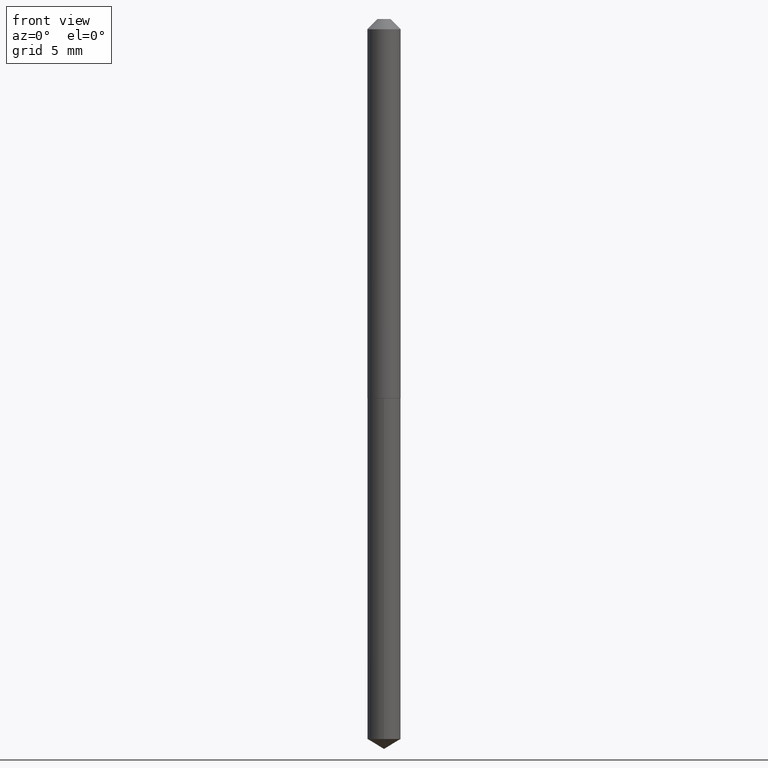
[diagram: clean part render]
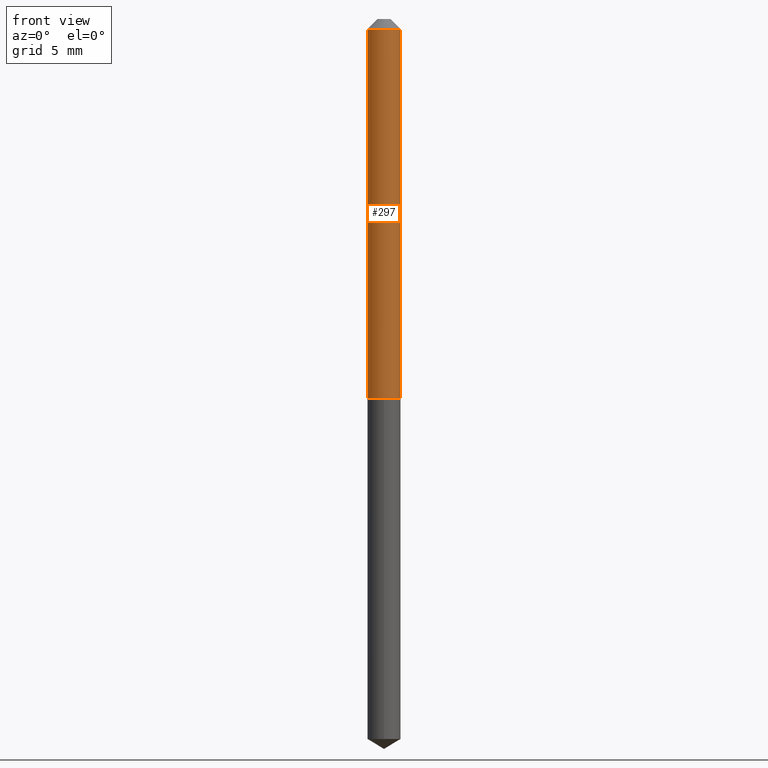
[diagram: same view with one face highlighted and labeled with its STEP entity id]
A machine part, front view. The second image highlights one B-rep face of the part: STEP entity #297.
In plain terms, the highlighted cylindrical surface (edge-blend (fillet) strip) has radius 1.3005 mm, axis along (-0, 0, 1).
Its self-contained STEP definition (entity closure, byte-faithful):
#11 = CIRCLE ( 'NONE', #224, 0.05120000000000001633 ) ;
#13 = DIRECTION ( 'NONE',  ( -2.445468806185136877E-29, 3.491481338843145188E-15, 1.000000000000000000 ) ) ;
#16 = CARTESIAN_POINT ( 'NONE',  ( -0.05120000000000007184, 3.637978807091718056E-16, -2.518494766210515431E-30 ) ) ;
#24 = CIRCLE ( 'NONE', #270, 0.05120000000000014123 ) ;
#30 = VECTOR ( 'NONE', #13, 39.37007874015748143 ) ;
#43 = EDGE_CURVE ( 'NONE', #300, #108, #11, .T. ) ;
#103 = VERTEX_POINT ( 'NONE', #386 ) ;
#108 = VERTEX_POINT ( 'NONE', #306 ) ;
#125 = DIRECTION ( 'NONE',  ( -2.445468806185136877E-29, 3.491481338843145188E-15, 1.000000000000000000 ) ) ;
#126 = ORIENTED_EDGE ( 'NONE', *, *, #43, .F. ) ;
#128 = DIRECTION ( 'NONE',  ( -2.445468806185136597E-29, 3.491481338843145583E-15, 1.000000000000000000 ) ) ;
#151 = DIRECTION ( 'NONE',  ( 1.000000000000000000, -6.982962677686267499E-15, 0.000000000000000000 ) ) ;
#158 = EDGE_LOOP ( 'NONE', ( #225, #343, #362, #126 ) ) ;
#160 = FACE_OUTER_BOUND ( 'NONE', #158, .T. ) ;
#174 = CARTESIAN_POINT ( 'NONE',  ( 7.642090019328602662E-31, -1.091087918388490267E-16, -0.03125000000000020817 ) ) ;
#180 = CARTESIAN_POINT ( 'NONE',  ( 2.848726612325065508E-29, -4.067226611618379942E-15, -1.164899999999999824 ) ) ;
#208 = DIRECTION ( 'NONE',  ( -2.445468806185136597E-29, 3.491481338843145583E-15, 1.000000000000000000 ) ) ;
#219 = AXIS2_PLACEMENT_3D ( 'NONE', #334, #128, #245 ) ;
#220 = EDGE_CURVE ( 'NONE', #345, #108, #239, .T. ) ;
#224 = AXIS2_PLACEMENT_3D ( 'NONE', #174, #208, #151 ) ;
#225 = ORIENTED_EDGE ( 'NONE', *, *, #236, .F. ) ;
#236 = EDGE_CURVE ( 'NONE', #103, #300, #273, .T. ) ;
#237 = DIRECTION ( 'NONE',  ( -2.445468806185136597E-29, 3.491481338843145583E-15, 1.000000000000000000 ) ) ;
#239 = LINE ( 'NONE', #305, #30 ) ;
#245 = DIRECTION ( 'NONE',  ( 1.000000000000000000, -6.982962677686266711E-15, 4.876176775795936353E-29 ) ) ;
#270 = AXIS2_PLACEMENT_3D ( 'NONE', #180, #237, #355 ) ;
#273 = LINE ( 'NONE', #16, #368 ) ;
#277 = CYLINDRICAL_SURFACE ( 'NONE', #219, 0.05120000000000007184 ) ;
#297 = ADVANCED_FACE ( 'NONE', ( #160 ), #277, .T. ) ;
#300 = VERTEX_POINT ( 'NONE', #375 ) ;
#305 = CARTESIAN_POINT ( 'NONE',  ( 0.05120000000000007184, -3.575276890975373415E-16, 2.496602509207522887E-30 ) ) ;
#306 = CARTESIAN_POINT ( 'NONE',  ( 0.05120000000000001633, -4.666364809363860477E-16, -0.03125000000000020817 ) ) ;
#334 = CARTESIAN_POINT ( 'NONE',  ( 0.000000000000000000, 0.000000000000000000, 0.000000000000000000 ) ) ;
#339 = EDGE_CURVE ( 'NONE', #103, #345, #24, .T. ) ;
#343 = ORIENTED_EDGE ( 'NONE', *, *, #339, .T. ) ;
#345 = VERTEX_POINT ( 'NONE', #363 ) ;
#355 = DIRECTION ( 'NONE',  ( 1.000000000000000000, -6.982962677686273021E-15, 0.000000000000000000 ) ) ;
#362 = ORIENTED_EDGE ( 'NONE', *, *, #220, .T. ) ;
#363 = CARTESIAN_POINT ( 'NONE',  ( 0.05120000000000014123, -4.424754300715918073E-15, -1.164899999999999824 ) ) ;
#368 = VECTOR ( 'NONE', #125, 39.37007874015748143 ) ;
#375 = CARTESIAN_POINT ( 'NONE',  ( -0.05120000000000001633, -1.724369821019441680E-15, -0.03125000000000020817 ) ) ;
#386 = CARTESIAN_POINT ( 'NONE',  ( -0.05120000000000014123, -3.703428730909207693E-15, -1.164899999999999824 ) ) ;